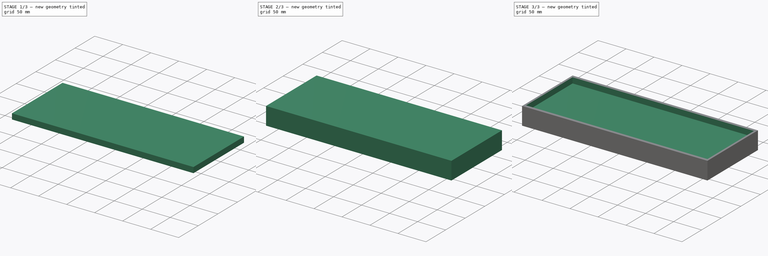
[diagram: build sequence overview — one tinted view per stage of 3, left to right]
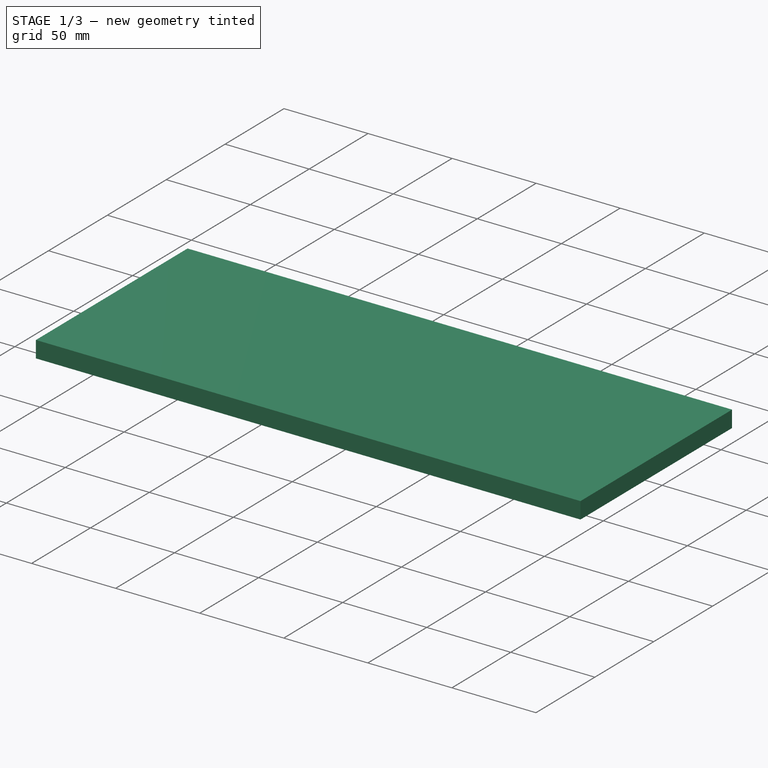
[diagram: stage 1 of 3 — iso view after this stage's code; geometry added in this stage tinted green]
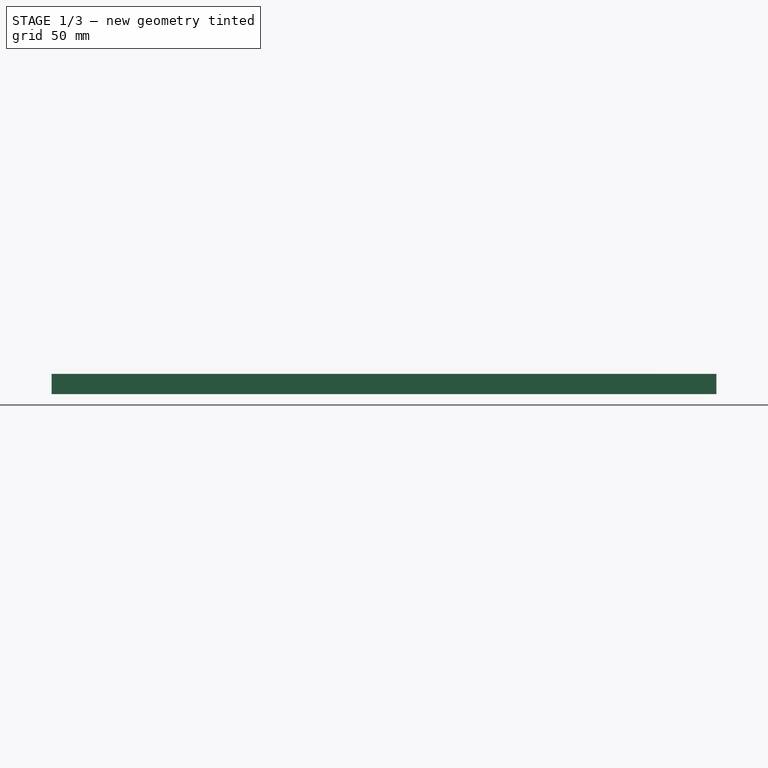
[diagram: stage 1 of 3 — front view after this stage's code; geometry added in this stage tinted green]
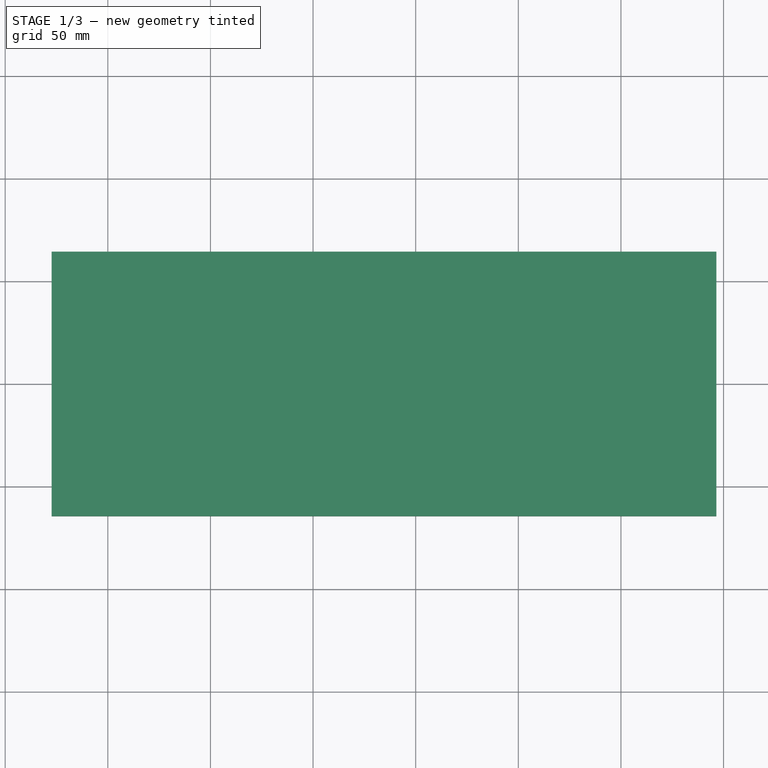
[diagram: stage 1 of 3 — top view after this stage's code; geometry added in this stage tinted green]
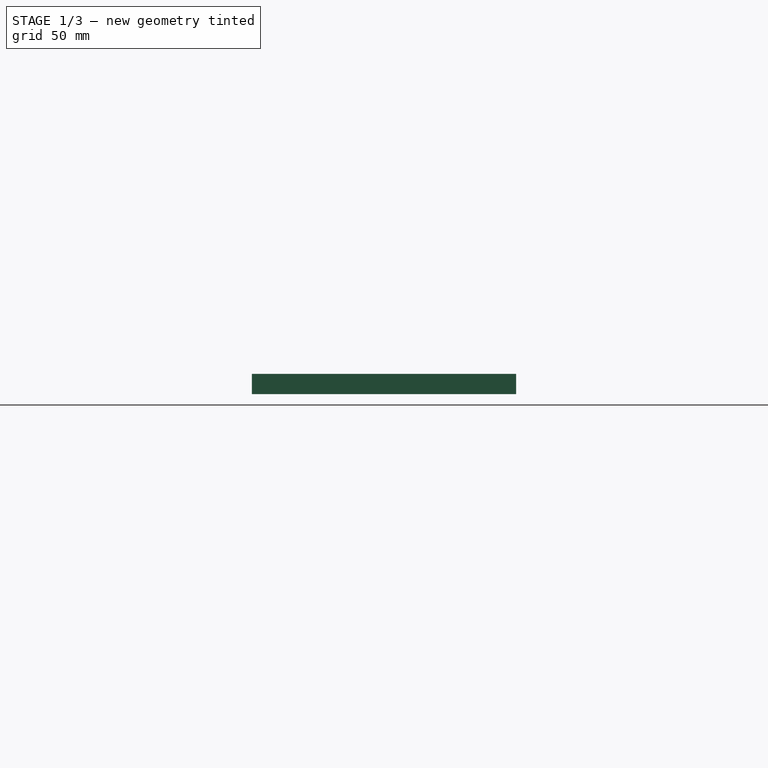
[diagram: stage 1 of 3 — right view after this stage's code; geometry added in this stage tinted green]
FCSTD DOCUMENT  (FreeCAD 0.19R19093 (Git))
Label: BottomCase
License: All rights reserved
LicenseURL: http://en.wikipedia.org/wiki/All_rights_reserved
objects: Sketcher::SketchObject×3, Part::Extrusion×3, Part::Cut×2
note: 8 computed .brp shape members not serialized (recipe doc carries the construction recipe); baked Part::Feature solids carry a one-line shape summary decoded from their .brp

FEATURE [Sketcher::SketchObject] Sketch
  sketch-geometry (8):
    g0: LineSegment StartX=-165.497 StartY=64.389 StartZ=0 EndX=165.497 EndY=64.389 EndZ=0
    g1: LineSegment [constr] StartX=168.879 StartY=64.389 StartZ=0 EndX=168.879 EndY=-64.389 EndZ=0
    g2: LineSegment StartX=165.497 StartY=-64.389 StartZ=0 EndX=-165.497 EndY=-64.389 EndZ=0
    g3: LineSegment [constr] StartX=-169.258 StartY=-64.389 StartZ=0 EndX=-169.258 EndY=64.389 EndZ=0
    g4: LineSegment [constr] StartX=-161.736 StartY=64.389 StartZ=0 EndX=-161.736 EndY=-64.389 EndZ=0
    g5: LineSegment [constr] StartX=162.114 StartY=64.389 StartZ=0 EndX=162.114 EndY=-64.389 EndZ=0
    g6: LineSegment StartX=-165.497 StartY=64.389 StartZ=0 EndX=-165.497 EndY=-64.389 EndZ=0
    g7: LineSegment StartX=165.497 StartY=-64.389 StartZ=0 EndX=165.497 EndY=64.389 EndZ=0
  constraints (24):
    c: Vertical(g3)
    c: DistanceX(g3,g1) = 338.137
    c: PointOnObject(g4,g0)
    c: PointOnObject(g4,g2)
    c: Vertical(g4)
    c: PointOnObject(g5,g0)
    c: PointOnObject(g5,g2)
    c: Vertical(g5)
    c: DistanceX(g4,g5) = 323.85
    c: Coincident(g0,g6)
    c: PointOnObject(g2,g6)
    c: PointOnObject(g6,g2)
    c: DistanceY(g4,g3) = 0
    c: Symmetric(g0,g2,g-1)
    c: Coincident(g0,g7)
    c: Coincident(g2,g7)
    c: Equal(g3,g5)
    c: Equal(g0,g2)
    c: Symmetric(g5,g1,g7)
    c: Vertical(g1)
    c: Symmetric(g3,g4,g6)
    c: Symmetric(g0,g0,g-2)
    c: DistanceY(g1,g2) = 0
    c: Block(g4)
FEATURE [Part::Extrusion] Extrude
  Base = -> Sketch
  Dir = (0,0,1)
  DirMode = 2
  FaceMakerClass = Part::FaceMakerBullseye
  LengthFwd = 31.75
  LengthRev = 0
  Solid = true
  Symmetric = false
FEATURE [Sketcher::SketchObject] Sketch001
  ExternalGeometry = -> [Extrude]
  MapMode = 5
  Placement = pos=(0,0,31.75) rot=(0,0,1;0rad)
  Support = -> [Extrude]
  sketch-geometry (5):
    g0: LineSegment StartX=172.641 StartY=-64.389 StartZ=0 EndX=496.491 EndY=-64.389 EndZ=0
    g1: LineSegment StartX=496.491 StartY=-64.389 StartZ=0 EndX=496.491 EndY=64.389 EndZ=0
    g2: LineSegment StartX=496.491 StartY=64.389 StartZ=0 EndX=172.641 EndY=64.389 EndZ=0
    g3: LineSegment StartX=172.641 StartY=64.389 StartZ=0 EndX=172.641 EndY=-64.389 EndZ=0
    g4: LineSegment [constr] StartX=165.497 StartY=-64.389 StartZ=0 EndX=165.497 EndY=64.389 EndZ=0
  constraints (16):
    c: Coincident(g0,g1)
    c: Coincident(g1,g2)
    c: Coincident(g2,g3)
    c: Coincident(g3,g0)
    c: Horizontal(g0)
    c: Horizontal(g2)
    c: Vertical(g1)
    c: Vertical(g3)
    c: PointOnObject(g0,g-3)
    c: PointOnObject(g2,g-6)
    c: Vertical(g4)
    c: PointOnObject(g4,g-4)
    c: DistanceX(g4,g0) = 7.14375
    c: DistanceX(g0,g0) = 323.85
    c: PointOnObject(g4,g-3)
    c: PointOnObject(g4,g-6)
FEATURE [Part::Extrusion] Extrude001
  Base = -> Sketch001
  Dir = (0,0,1)
  DirMode = 2
  FaceMakerClass = Part::FaceMakerBullseye
  LengthFwd = -9.906
  LengthRev = 0
  Solid = true
  Symmetric = false
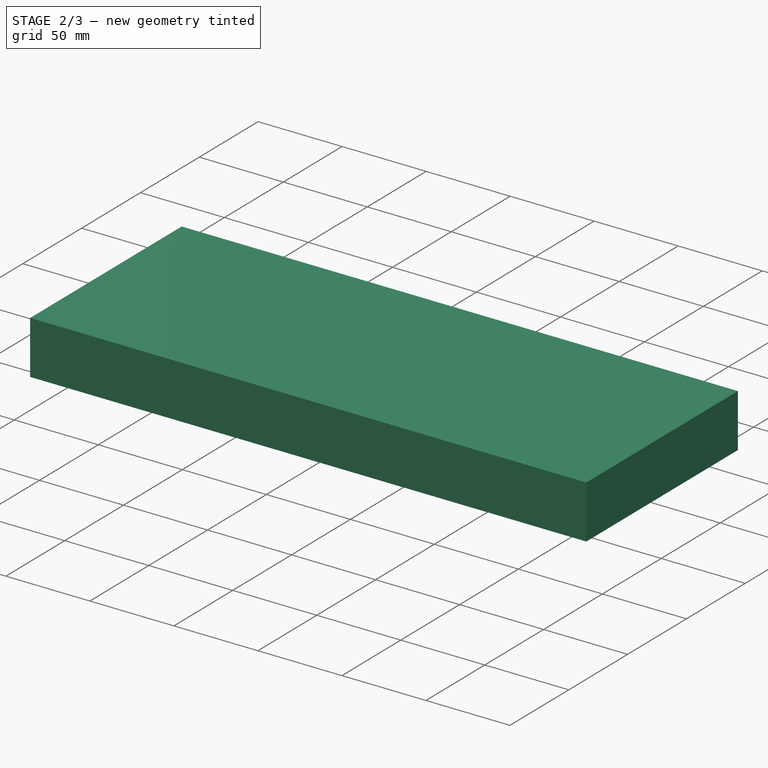
[diagram: stage 2 of 3 — iso view after this stage's code; geometry added in this stage tinted green]
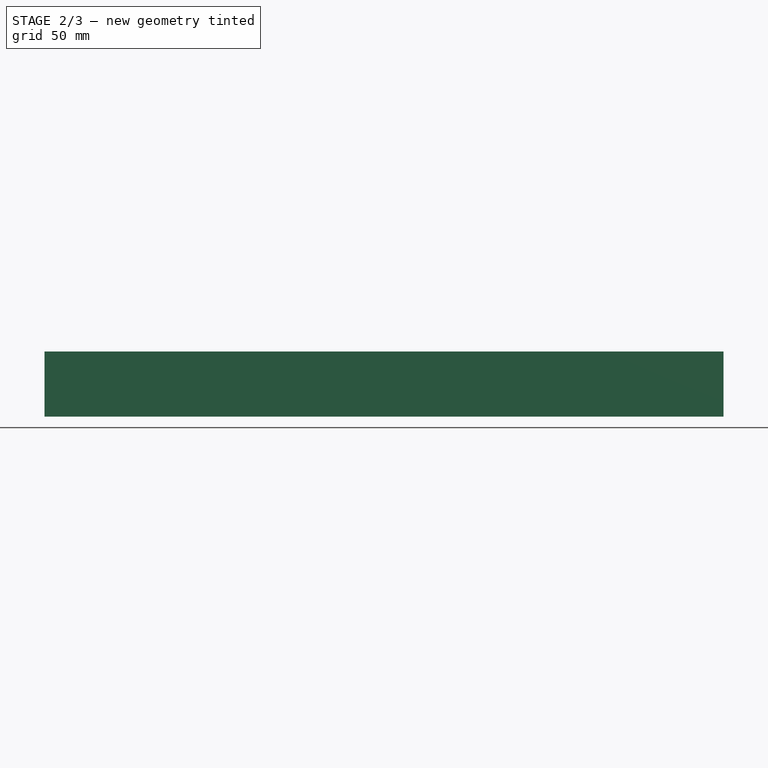
[diagram: stage 2 of 3 — front view after this stage's code; geometry added in this stage tinted green]
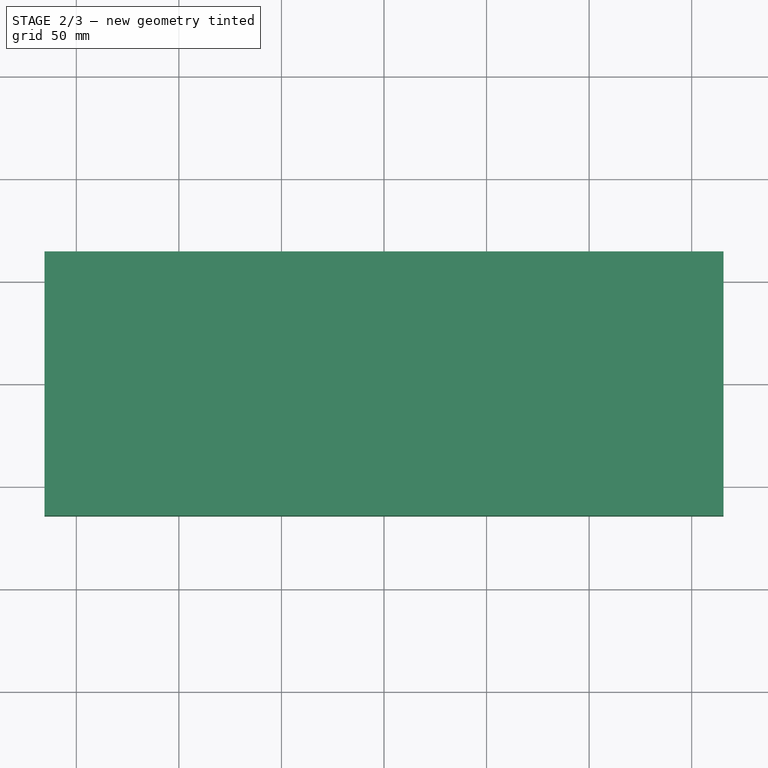
[diagram: stage 2 of 3 — top view after this stage's code; geometry added in this stage tinted green]
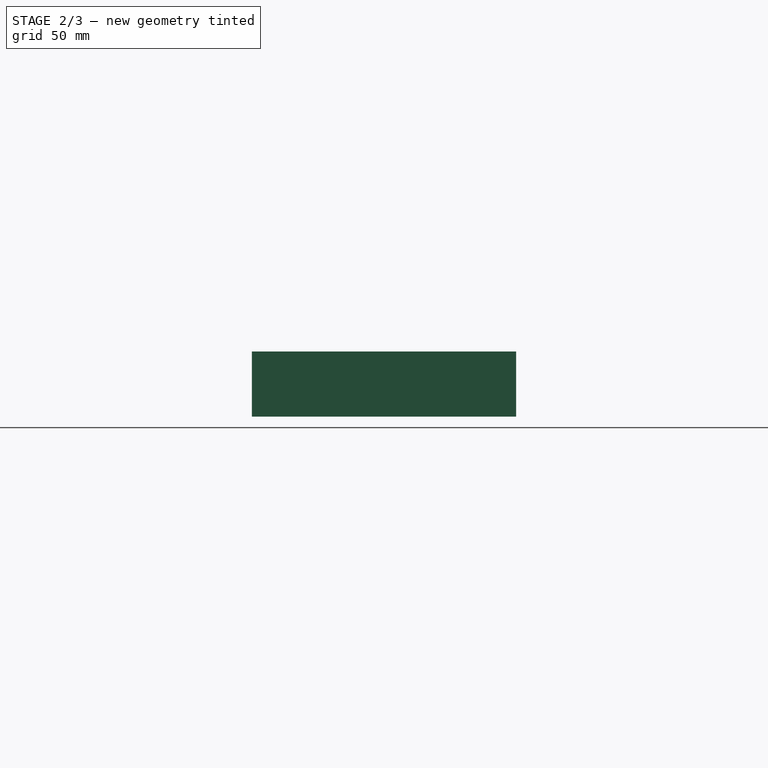
[diagram: stage 2 of 3 — right view after this stage's code; geometry added in this stage tinted green]
FEATURE [Part::Cut] Cut
  Base = -> Extrude
  Tool = -> Extrude001
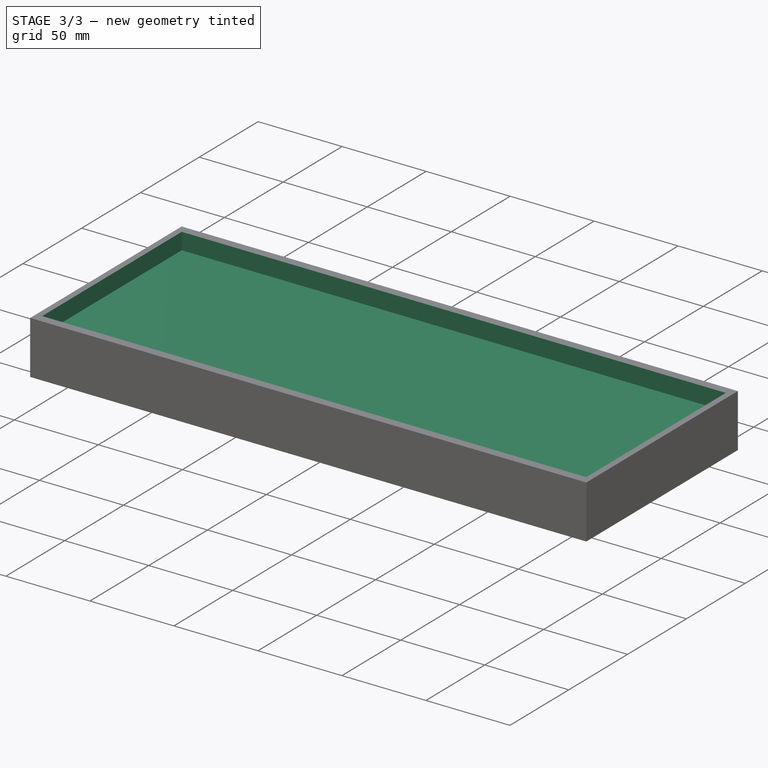
[diagram: stage 3 of 3 — iso view after this stage's code; geometry added in this stage tinted green]
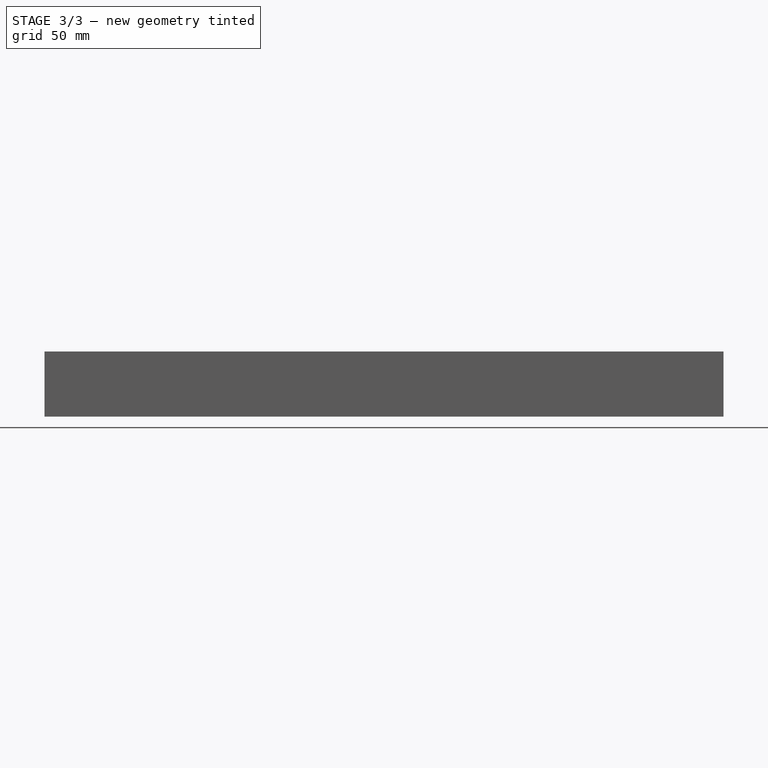
[diagram: stage 3 of 3 — front view after this stage's code; geometry added in this stage tinted green]
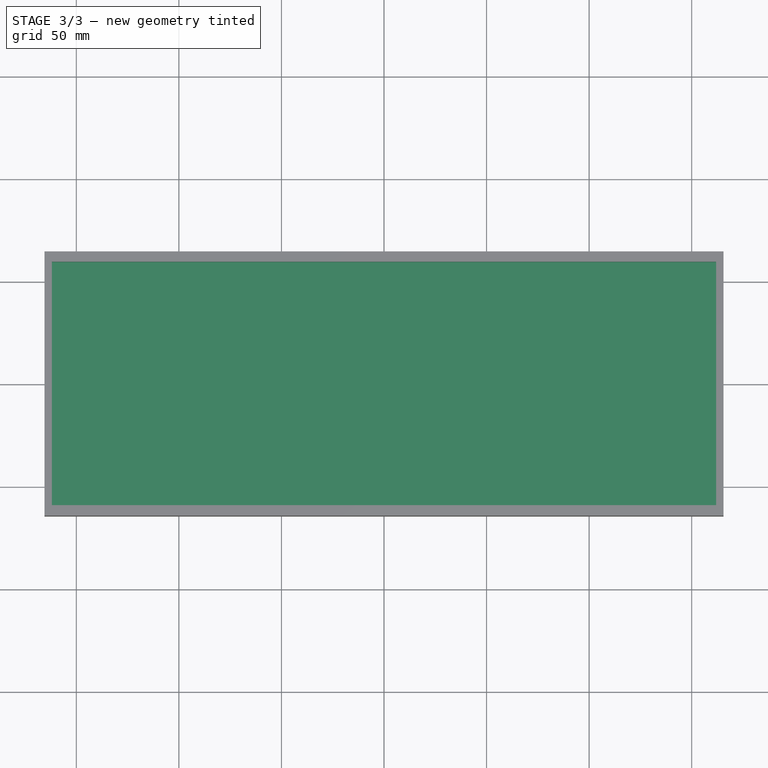
[diagram: stage 3 of 3 — top view after this stage's code; geometry added in this stage tinted green]
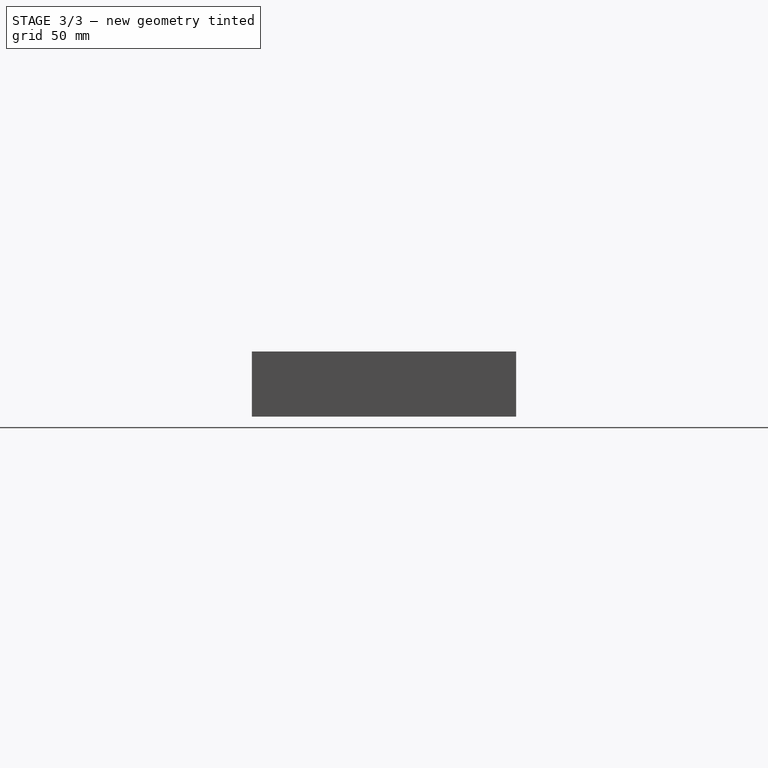
[diagram: stage 3 of 3 — right view after this stage's code; geometry added in this stage tinted green]
FEATURE [Sketcher::SketchObject] Sketch002
  ExternalGeometry = -> [Cut]
  MapMode = 5
  Placement = pos=(0,0,31.75) rot=(0,0,1;0rad)
  Support = -> [Cut]
  sketch-geometry (5):
    g0: LineSegment StartX=-161.925 StartY=59.309 StartZ=0 EndX=161.925 EndY=59.309 EndZ=0
    g1: LineSegment StartX=161.925 StartY=59.309 StartZ=0 EndX=161.925 EndY=-59.309 EndZ=0
    g2: LineSegment StartX=161.925 StartY=-59.309 StartZ=0 EndX=-161.925 EndY=-59.309 EndZ=0
    g3: LineSegment StartX=-161.925 StartY=-59.309 StartZ=0 EndX=-161.925 EndY=59.309 EndZ=0
    g4: LineSegment [constr] StartX=-161.925 StartY=64.389 StartZ=0 EndX=-161.925 EndY=-64.389 EndZ=0
  constraints (10):
    c: Coincident(g0,g1)
    c: Coincident(g1,g2)
    c: Coincident(g2,g3)
    c: Coincident(g3,g0)
    c: Horizontal(g0)
    c: Horizontal(g2)
    c: Vertical(g1)
    c: Vertical(g4)
    c: Symmetric(g0,g2,g-1)
    c: DistanceY(g0,g4) = 5.08
FEATURE [Part::Extrusion] Extrude002
  Base = -> Sketch002
  Dir = (0,0,1)
  DirMode = 2
  FaceMakerClass = Part::FaceMakerBullseye
  LengthFwd = -9.906
  LengthRev = 0
  Solid = true
  Symmetric = false
FEATURE [Part::Cut] Cut001
  Base = -> Cut
  Tool = -> Extrude002
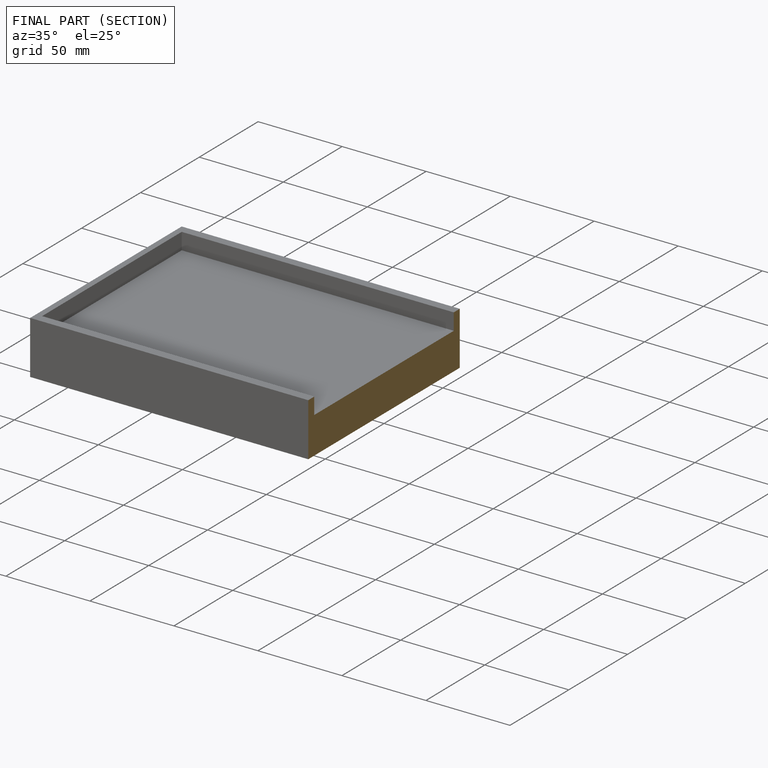
[diagram: finished part — half-section view (interior)]
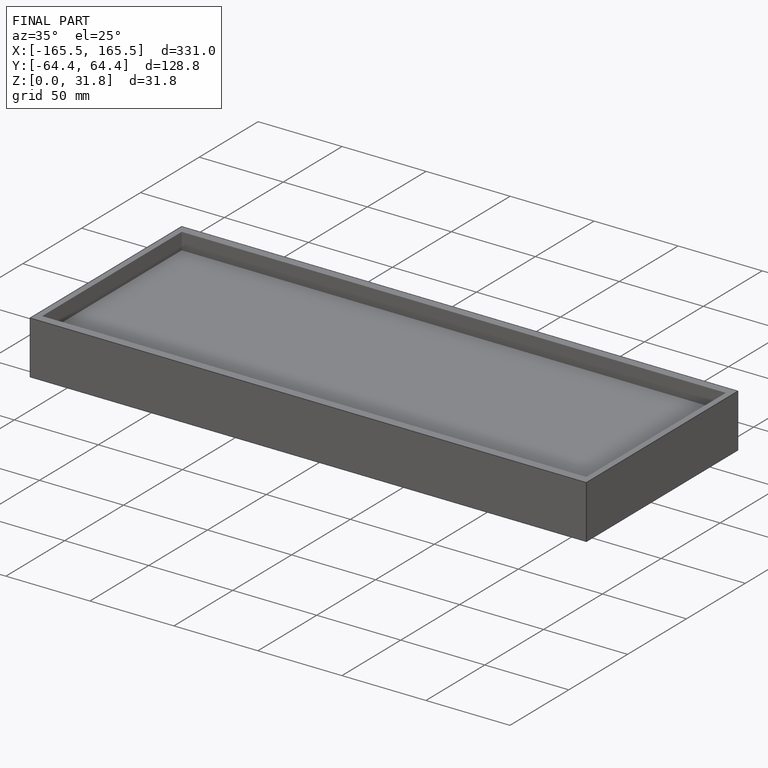
[diagram: finished part — iso view with bounding-box wireframe]
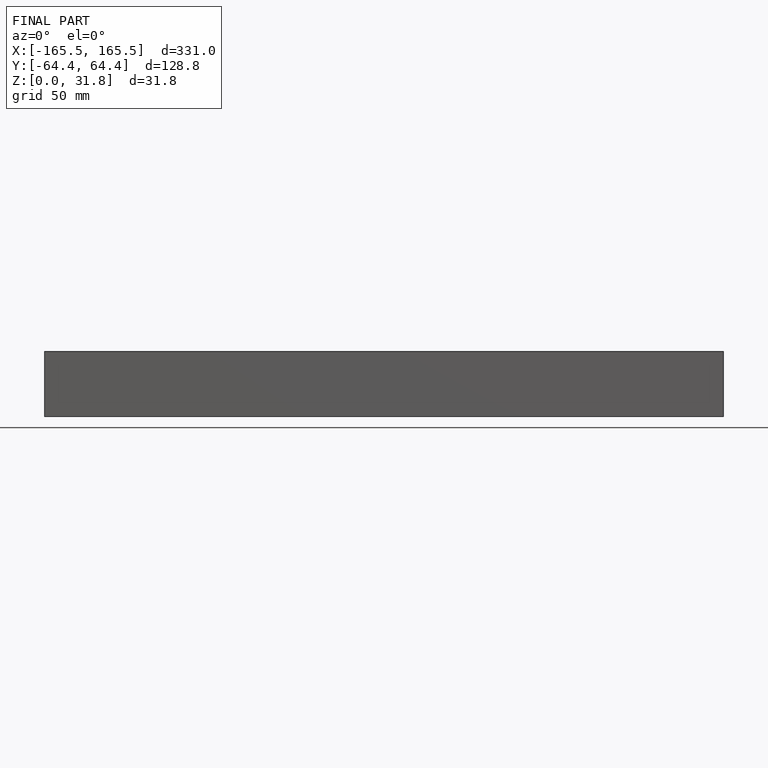
[diagram: finished part — front view with bounding-box wireframe]
